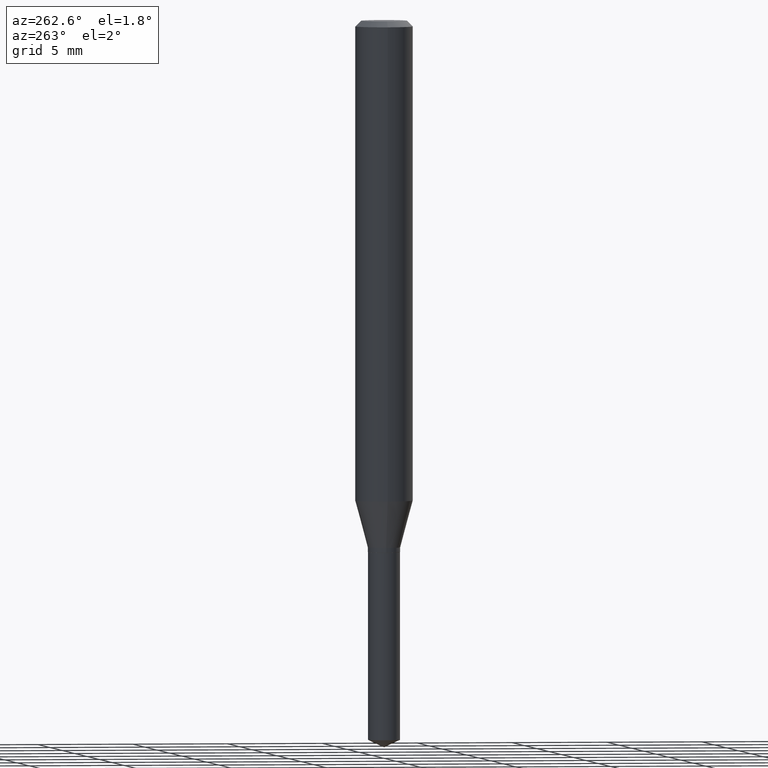
[diagram: clean part render]
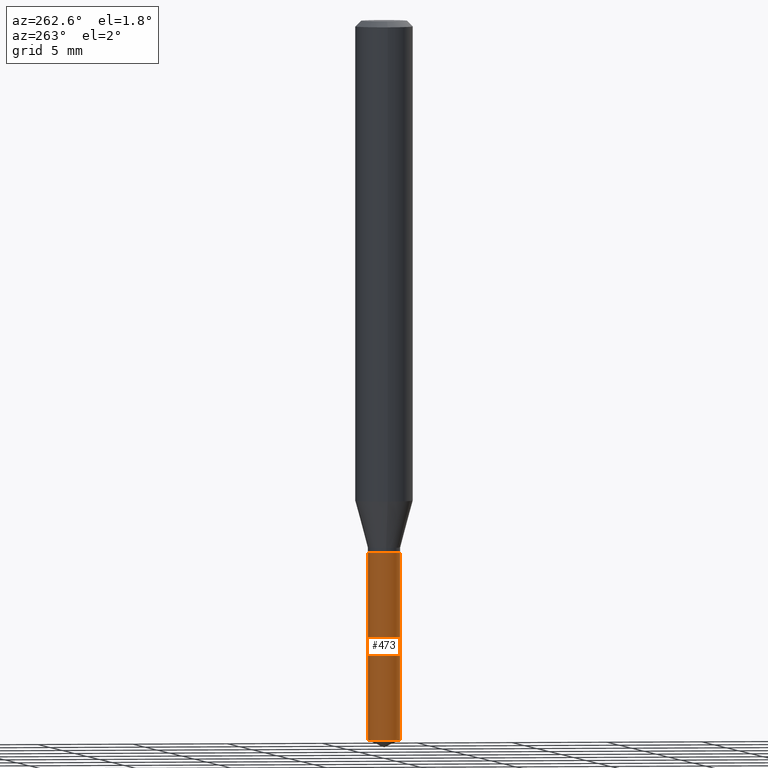
[diagram: same view with one face highlighted and labeled with its STEP entity id]
A machine part, auxiliary view. The second image highlights one B-rep face of the part: STEP entity #473.
In plain terms, the highlighted cylindrical surface (edge-blend (fillet) strip) has radius 0.8446 mm, axis along (-0, 0, 1).
Its self-contained STEP definition (entity closure, byte-faithful):
#1 = VERTEX_POINT ( 'NONE', #280 ) ;
#11 = DIRECTION ( 'NONE',  ( -2.445470214571802116E-29, 3.491479321953280158E-15, 1.000000000000000000 ) ) ;
#18 = CARTESIAN_POINT ( 'NONE',  ( 2.362554596402600471E-16, 0.03324999999999617845, -1.094500000000000028 ) ) ;
#23 = VERTEX_POINT ( 'NONE', #282 ) ;
#25 = CARTESIAN_POINT ( 'NONE',  ( 3.620750092037578923E-29, -5.169469978151881884E-15, -1.480595270366346305 ) ) ;
#32 = ORIENTED_EDGE ( 'NONE', *, *, #204, .T. ) ;
#52 = FACE_OUTER_BOUND ( 'NONE', #146, .T. ) ;
#61 = CARTESIAN_POINT ( 'NONE',  ( 2.676565608369631794E-29, -3.821426325363822773E-15, -1.094499999999999806 ) ) ;
#79 = CARTESIAN_POINT ( 'NONE',  ( -2.321835090330415843E-16, -0.03325000000000382511, -1.094499999999999806 ) ) ;
#105 = ORIENTED_EDGE ( 'NONE', *, *, #457, .T. ) ;
#113 = LINE ( 'NONE', #79, #220 ) ;
#120 = DIRECTION ( 'NONE',  ( -2.445470214571802396E-29, 3.491479321953280158E-15, 1.000000000000000000 ) ) ;
#125 = DIRECTION ( 'NONE',  ( -2.445470214571802396E-29, 3.491479321953280158E-15, 1.000000000000000000 ) ) ;
#146 = EDGE_LOOP ( 'NONE', ( #167, #32, #105, #371 ) ) ;
#167 = ORIENTED_EDGE ( 'NONE', *, *, #245, .F. ) ;
#204 = EDGE_CURVE ( 'NONE', #23, #374, #454, .T. ) ;
#207 = EDGE_CURVE ( 'NONE', #469, #1, #296, .T. ) ;
#220 = VECTOR ( 'NONE', #120, 39.37007874015748143 ) ;
#240 = CARTESIAN_POINT ( 'NONE',  ( 2.362554596402695134E-16, 0.03324999999999617845, -1.094500000000000028 ) ) ;
#244 = DIRECTION ( 'NONE',  ( -6.982962677686265922E-15, -1.000000000000000000, 4.108042095735734288E-15 ) ) ;
#245 = EDGE_CURVE ( 'NONE', #23, #469, #394, .T. ) ;
#259 = VECTOR ( 'NONE', #125, 39.37007874015748143 ) ;
#280 = CARTESIAN_POINT ( 'NONE',  ( -2.321835090330415843E-16, -0.03325000000000382511, -1.094499999999999806 ) ) ;
#282 = CARTESIAN_POINT ( 'NONE',  ( 2.362554596402695134E-16, 0.03324999999999482536, -1.480595270366346305 ) ) ;
#285 = AXIS2_PLACEMENT_3D ( 'NONE', #61, #392, #244 ) ;
#295 = DIRECTION ( 'NONE',  ( -6.982962677686265922E-15, -1.000000000000000000, 0.000000000000000000 ) ) ;
#296 = CIRCLE ( 'NONE', #285, 0.03325000000000000178 ) ;
#320 = CARTESIAN_POINT ( 'NONE',  ( -2.321835090330320687E-16, -0.03325000000000517125, -1.480595270366346305 ) ) ;
#350 = CYLINDRICAL_SURFACE ( 'NONE', #370, 0.03325000000000000178 ) ;
#355 = CARTESIAN_POINT ( 'NONE',  ( 2.676565608369631794E-29, -3.821426325363822773E-15, -1.094499999999999806 ) ) ;
#370 = AXIS2_PLACEMENT_3D ( 'NONE', #355, #11, #467 ) ;
#371 = ORIENTED_EDGE ( 'NONE', *, *, #207, .F. ) ;
#374 = VERTEX_POINT ( 'NONE', #320 ) ;
#392 = DIRECTION ( 'NONE',  ( -2.445470214571802116E-29, 3.491479321953280158E-15, 1.000000000000000000 ) ) ;
#394 = LINE ( 'NONE', #18, #259 ) ;
#396 = AXIS2_PLACEMENT_3D ( 'NONE', #25, #485, #295 ) ;
#454 = CIRCLE ( 'NONE', #396, 0.03325000000000000178 ) ;
#457 = EDGE_CURVE ( 'NONE', #374, #1, #113, .T. ) ;
#467 = DIRECTION ( 'NONE',  ( -6.982962677686265922E-15, -1.000000000000000000, 4.108042095735734288E-15 ) ) ;
#469 = VERTEX_POINT ( 'NONE', #240 ) ;
#473 = ADVANCED_FACE ( 'NONE', ( #52 ), #350, .T. ) ;
#485 = DIRECTION ( 'NONE',  ( -2.445470214571802116E-29, 3.491479321953280158E-15, 1.000000000000000000 ) ) ;